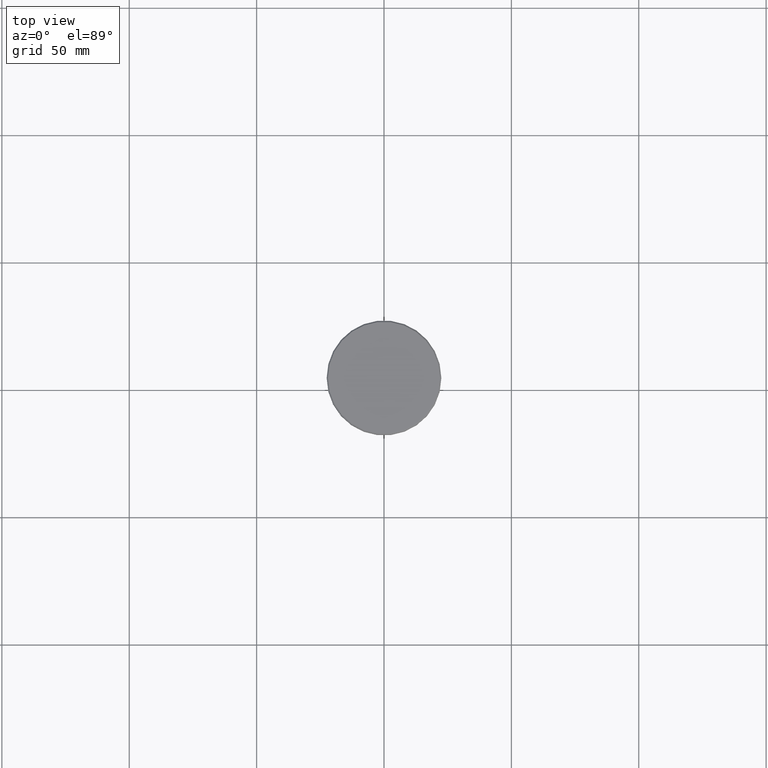
[diagram: clean part render]
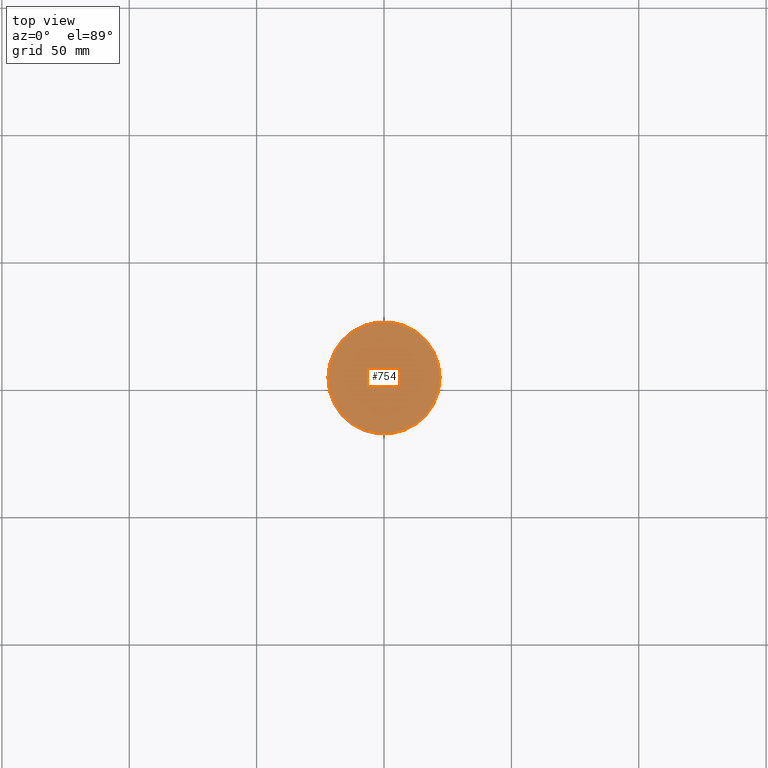
[diagram: same view with one face highlighted and labeled with its STEP entity id]
A machine part, top view. The second image highlights one B-rep face of the part: STEP entity #754.
In plain terms, the highlighted planar face has unit normal (0, -0, 1).
Its self-contained STEP definition (entity closure, byte-faithful):
#26 = CARTESIAN_POINT ( 'NONE',  ( -22.00000000000004619, 0.000000000000000000, 0.000000000000000000 ) ) ;
#56 = CARTESIAN_POINT ( 'NONE',  ( 0.000000000000000000, 0.000000000000000000, 0.000000000000000000 ) ) ;
#62 = CIRCLE ( 'NONE', #889, 22.00000000000004619 ) ;
#96 = DIRECTION ( 'NONE',  ( -0.000000000000000000, -0.000000000000000000, 1.000000000000000000 ) ) ;
#124 = VERTEX_POINT ( 'NONE', #26 ) ;
#181 = CARTESIAN_POINT ( 'NONE',  ( 0.000000000000000000, 0.000000000000000000, 0.000000000000000000 ) ) ;
#182 = ORIENTED_EDGE ( 'NONE', *, *, #186, .T. ) ;
#186 = EDGE_CURVE ( 'NONE', #1049, #124, #62, .T. ) ;
#232 = DIRECTION ( 'NONE',  ( 1.000000000000000000, 0.000000000000000000, 0.000000000000000000 ) ) ;
#254 = ORIENTED_EDGE ( 'NONE', *, *, #660, .T. ) ;
#277 = FACE_OUTER_BOUND ( 'NONE', #389, .T. ) ;
#389 = EDGE_LOOP ( 'NONE', ( #254, #182 ) ) ;
#539 = DIRECTION ( 'NONE',  ( 1.000000000000000000, 0.000000000000000000, 0.000000000000000000 ) ) ;
#546 = DIRECTION ( 'NONE',  ( 0.000000000000000000, -0.000000000000000000, 1.000000000000000000 ) ) ;
#602 = CARTESIAN_POINT ( 'NONE',  ( 22.00000000000004619, 2.724839128102864146E-15, 0.000000000000000000 ) ) ;
#651 = AXIS2_PLACEMENT_3D ( 'NONE', #826, #546, #1171 ) ;
#660 = EDGE_CURVE ( 'NONE', #124, #1049, #802, .T. ) ;
#697 = DIRECTION ( 'NONE',  ( -0.000000000000000000, -0.000000000000000000, 1.000000000000000000 ) ) ;
#754 = ADVANCED_FACE ( 'NONE', ( #277 ), #1177, .T. ) ;
#802 = CIRCLE ( 'NONE', #892, 22.00000000000004619 ) ;
#826 = CARTESIAN_POINT ( 'NONE',  ( 0.000000000000000000, 0.000000000000000000, 0.000000000000000000 ) ) ;
#889 = AXIS2_PLACEMENT_3D ( 'NONE', #181, #96, #539 ) ;
#892 = AXIS2_PLACEMENT_3D ( 'NONE', #56, #697, #232 ) ;
#1049 = VERTEX_POINT ( 'NONE', #602 ) ;
#1171 = DIRECTION ( 'NONE',  ( 1.000000000000000000, 0.000000000000000000, 0.000000000000000000 ) ) ;
#1177 = PLANE ( 'NONE',  #651 ) ;